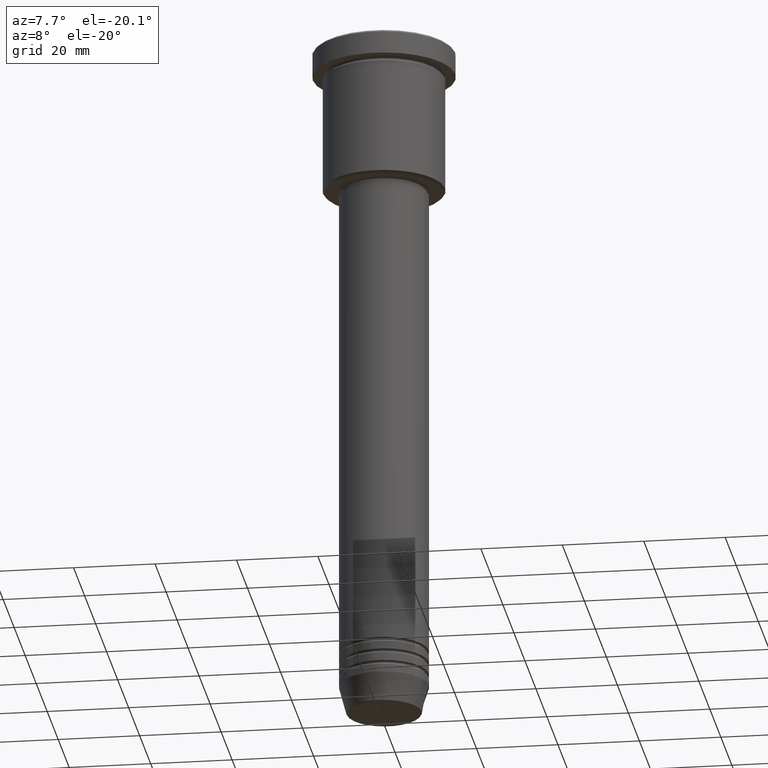
[diagram: clean part render]
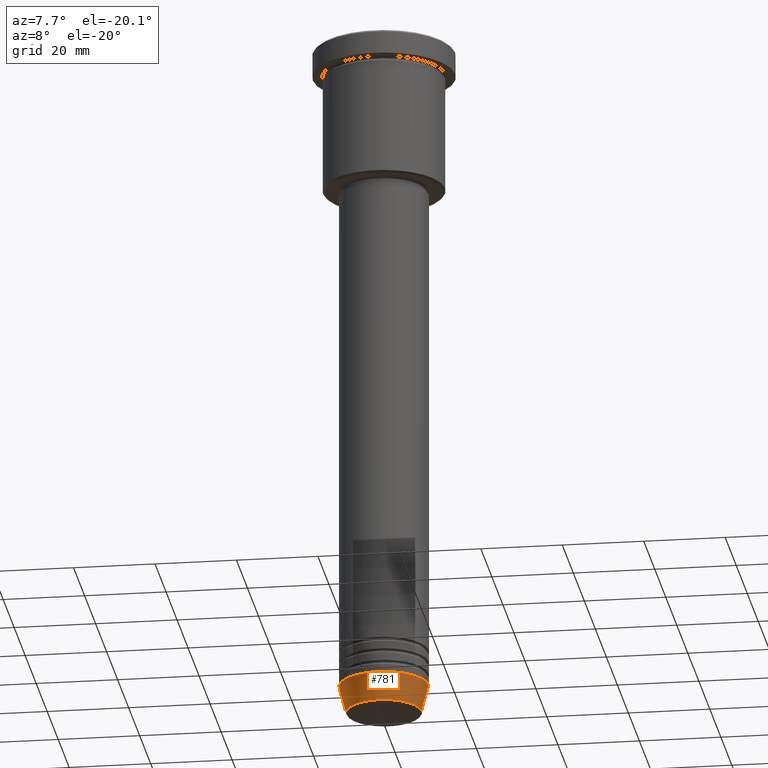
[diagram: same view with one face highlighted and labeled with its STEP entity id]
A machine part, auxiliary view. The second image highlights one B-rep face of the part: STEP entity #781.
In plain terms, the highlighted conical surface has half-angle 15 deg.
Its self-contained STEP definition (entity closure, byte-faithful):
#23 = CARTESIAN_POINT ( 'NONE',  ( 11.00000000000000000, 0.000000000000000000, -164.0000000000000000 ) ) ;
#40 = CARTESIAN_POINT ( 'NONE',  ( -9.223655072137194821, 1.238341722557647596E-15, -170.6294095225512422 ) ) ;
#76 = EDGE_CURVE ( 'NONE', #353, #590, #486, .T. ) ;
#82 = VECTOR ( 'NONE', #1020, 1000.000000000000000 ) ;
#92 = EDGE_CURVE ( 'NONE', #590, #632, #682, .T. ) ;
#110 = CARTESIAN_POINT ( 'NONE',  ( -11.00000000000000000, 1.347111479062088405E-15, -164.0000000000000000 ) ) ;
#166 = VERTEX_POINT ( 'NONE', #315 ) ;
#250 = CARTESIAN_POINT ( 'NONE',  ( 0.000000000000000000, 0.000000000000000000, -164.0000000000000000 ) ) ;
#283 = DIRECTION ( 'NONE',  ( 1.000000000000000000, 0.000000000000000000, 0.000000000000000000 ) ) ;
#315 = CARTESIAN_POINT ( 'NONE',  ( 9.223655072137194821, 0.000000000000000000, -170.6294095225512422 ) ) ;
#324 = CONICAL_SURFACE ( 'NONE', #991, 11.00000000000000000, 0.2617993877991500740 ) ;
#353 = VERTEX_POINT ( 'NONE', #40 ) ;
#369 = CARTESIAN_POINT ( 'NONE',  ( 0.000000000000000000, 0.000000000000000000, -164.0000000000000000 ) ) ;
#403 = CARTESIAN_POINT ( 'NONE',  ( 11.00000000000000000, 0.000000000000000000, -164.0000000000000000 ) ) ;
#433 = AXIS2_PLACEMENT_3D ( 'NONE', #1103, #591, #778 ) ;
#479 = CIRCLE ( 'NONE', #433, 9.223655072137194821 ) ;
#486 = LINE ( 'NONE', #739, #1169 ) ;
#524 = ORIENTED_EDGE ( 'NONE', *, *, #92, .F. ) ;
#590 = VERTEX_POINT ( 'NONE', #110 ) ;
#591 = DIRECTION ( 'NONE',  ( -0.000000000000000000, -0.000000000000000000, 1.000000000000000000 ) ) ;
#632 = VERTEX_POINT ( 'NONE', #23 ) ;
#643 = DIRECTION ( 'NONE',  ( 1.000000000000000000, 0.000000000000000000, 0.000000000000000000 ) ) ;
#665 = ORIENTED_EDGE ( 'NONE', *, *, #76, .F. ) ;
#668 = EDGE_CURVE ( 'NONE', #353, #166, #479, .T. ) ;
#682 = CIRCLE ( 'NONE', #822, 11.00000000000000000 ) ;
#728 = DIRECTION ( 'NONE',  ( -0.000000000000000000, -0.000000000000000000, 1.000000000000000000 ) ) ;
#739 = CARTESIAN_POINT ( 'NONE',  ( -11.00000000000000000, 1.347111479062088405E-15, -164.0000000000000000 ) ) ;
#743 = ORIENTED_EDGE ( 'NONE', *, *, #876, .T. ) ;
#778 = DIRECTION ( 'NONE',  ( 1.000000000000000000, 0.000000000000000000, 0.000000000000000000 ) ) ;
#781 = ADVANCED_FACE ( 'NONE', ( #1147 ), #324, .T. ) ;
#822 = AXIS2_PLACEMENT_3D ( 'NONE', #369, #1094, #283 ) ;
#869 = ORIENTED_EDGE ( 'NONE', *, *, #668, .T. ) ;
#876 = EDGE_CURVE ( 'NONE', #166, #632, #1123, .T. ) ;
#991 = AXIS2_PLACEMENT_3D ( 'NONE', #250, #728, #643 ) ;
#1020 = DIRECTION ( 'NONE',  ( 0.2588190451025213501, 0.000000000000000000, 0.9659258262890680902 ) ) ;
#1094 = DIRECTION ( 'NONE',  ( -0.000000000000000000, -0.000000000000000000, 1.000000000000000000 ) ) ;
#1103 = CARTESIAN_POINT ( 'NONE',  ( 0.000000000000000000, 0.000000000000000000, -170.6294095225512422 ) ) ;
#1123 = LINE ( 'NONE', #403, #82 ) ;
#1147 = FACE_OUTER_BOUND ( 'NONE', #1150, .T. ) ;
#1150 = EDGE_LOOP ( 'NONE', ( #665, #869, #743, #524 ) ) ;
#1169 = VECTOR ( 'NONE', #1177, 1000.000000000000000 ) ;
#1177 = DIRECTION ( 'NONE',  ( -0.2588190451025213501, 3.169619151431772337E-17, 0.9659258262890680902 ) ) ;